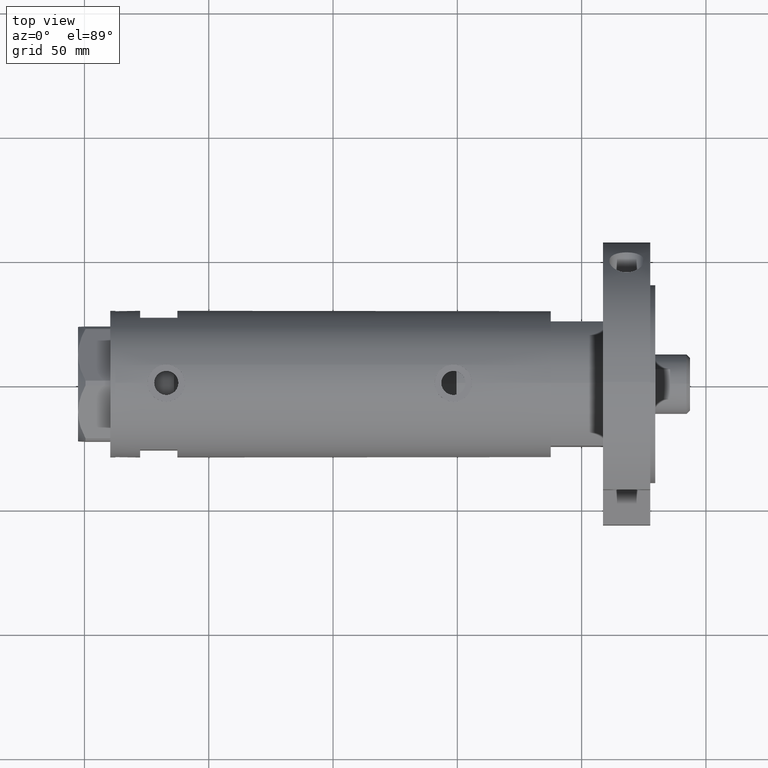
[diagram: clean part render]
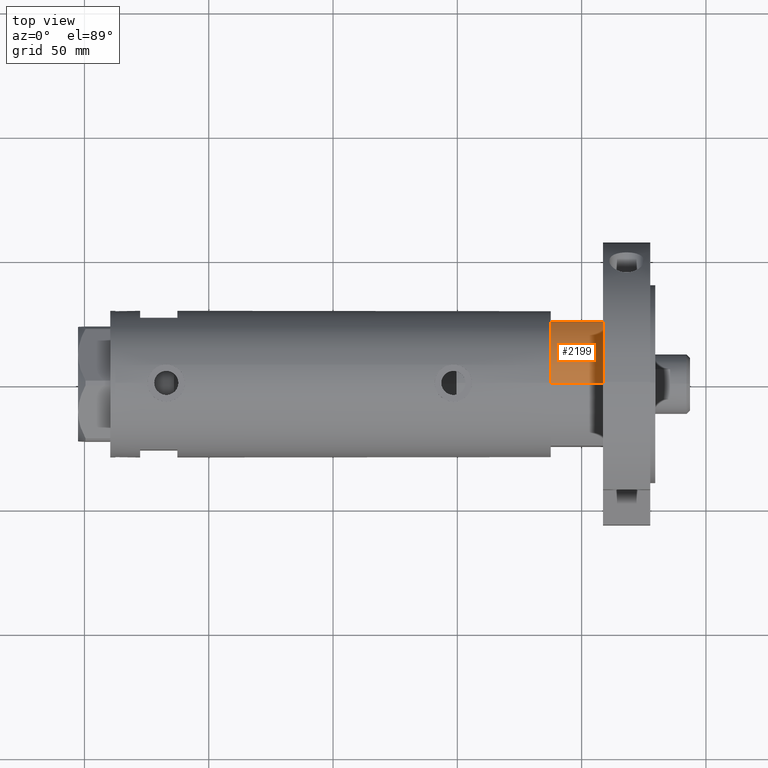
[diagram: same view with one face highlighted and labeled with its STEP entity id]
A machine part, top view. The second image highlights one B-rep face of the part: STEP entity #2199.
In plain terms, the highlighted cylindrical surface (partial cylindrical patch) has radius 29.5 mm, axis along (-1, -0, 0).
Its self-contained STEP definition (entity closure, byte-faithful):
#102 = CIRCLE ( 'NONE', #1380, 29.50000000000000355 ) ;
#293 = ORIENTED_EDGE ( 'NONE', *, *, #2937, .F. ) ;
#676 = CARTESIAN_POINT ( 'NONE',  ( -15.66045976336583401, 25.00000000000000000, 0.000000000000000000 ) ) ;
#775 = VECTOR ( 'NONE', #862, 1000.000000000000000 ) ;
#843 = VERTEX_POINT ( 'NONE', #4604 ) ;
#862 = DIRECTION ( 'NONE',  ( -0.000000000000000000, -0.000000000000000000, 1.000000000000000000 ) ) ;
#899 = EDGE_CURVE ( 'NONE', #5175, #5072, #2722, .T. ) ;
#1018 = DIRECTION ( 'NONE',  ( -0.000000000000000000, -0.000000000000000000, -1.000000000000000000 ) ) ;
#1137 = CARTESIAN_POINT ( 'NONE',  ( -15.66045976336583045, 24.99999999999999645, 21.00000000000000355 ) ) ;
#1301 = CARTESIAN_POINT ( 'NONE',  ( 0.000000000000000000, 0.000000000000000000, 21.00000000000000000 ) ) ;
#1379 = DIRECTION ( 'NONE',  ( 1.000000000000000000, 0.000000000000000000, 0.000000000000000000 ) ) ;
#1380 = AXIS2_PLACEMENT_3D ( 'NONE', #1843, #3734, #1379 ) ;
#1614 = CIRCLE ( 'NONE', #5464, 29.50000000000000355 ) ;
#1677 = AXIS2_PLACEMENT_3D ( 'NONE', #1301, #5639, #1739 ) ;
#1739 = DIRECTION ( 'NONE',  ( -1.000000000000000000, 0.000000000000000000, 0.000000000000000000 ) ) ;
#1751 = DIRECTION ( 'NONE',  ( 1.000000000000000000, 0.000000000000000000, 0.000000000000000000 ) ) ;
#1832 = EDGE_LOOP ( 'NONE', ( #2804, #293, #5313, #4899 ) ) ;
#1843 = CARTESIAN_POINT ( 'NONE',  ( 0.000000000000000000, 0.000000000000000000, 21.00000000000000000 ) ) ;
#2199 = ADVANCED_FACE ( 'NONE', ( #3696 ), #4681, .T. ) ;
#2233 = VERTEX_POINT ( 'NONE', #5578 ) ;
#2722 = LINE ( 'NONE', #4229, #775 ) ;
#2804 = ORIENTED_EDGE ( 'NONE', *, *, #3613, .F. ) ;
#2937 = EDGE_CURVE ( 'NONE', #5072, #2233, #102, .T. ) ;
#3369 = LINE ( 'NONE', #5257, #3671 ) ;
#3613 = EDGE_CURVE ( 'NONE', #2233, #843, #3369, .T. ) ;
#3671 = VECTOR ( 'NONE', #1018, 1000.000000000000000 ) ;
#3696 = FACE_OUTER_BOUND ( 'NONE', #1832, .T. ) ;
#3734 = DIRECTION ( 'NONE',  ( 0.000000000000000000, 0.000000000000000000, 1.000000000000000000 ) ) ;
#4229 = CARTESIAN_POINT ( 'NONE',  ( -15.66045976336583401, 25.00000000000000000, 0.000000000000000000 ) ) ;
#4483 = DIRECTION ( 'NONE',  ( 0.000000000000000000, 0.000000000000000000, 1.000000000000000000 ) ) ;
#4604 = CARTESIAN_POINT ( 'NONE',  ( -29.50000000000000355, 0.000000000000000000, 0.000000000000000000 ) ) ;
#4681 = CYLINDRICAL_SURFACE ( 'NONE', #1677, 29.50000000000000355 ) ;
#4899 = ORIENTED_EDGE ( 'NONE', *, *, #5671, .T. ) ;
#4954 = CARTESIAN_POINT ( 'NONE',  ( 0.000000000000000000, 0.000000000000000000, 0.000000000000000000 ) ) ;
#5072 = VERTEX_POINT ( 'NONE', #1137 ) ;
#5175 = VERTEX_POINT ( 'NONE', #676 ) ;
#5257 = CARTESIAN_POINT ( 'NONE',  ( -29.50000000000000355, 0.000000000000000000, 21.00000000000000000 ) ) ;
#5313 = ORIENTED_EDGE ( 'NONE', *, *, #899, .F. ) ;
#5464 = AXIS2_PLACEMENT_3D ( 'NONE', #4954, #4483, #1751 ) ;
#5578 = CARTESIAN_POINT ( 'NONE',  ( -29.50000000000000355, 0.000000000000000000, 21.00000000000000000 ) ) ;
#5639 = DIRECTION ( 'NONE',  ( -0.000000000000000000, -0.000000000000000000, -1.000000000000000000 ) ) ;
#5671 = EDGE_CURVE ( 'NONE', #5175, #843, #1614, .T. ) ;